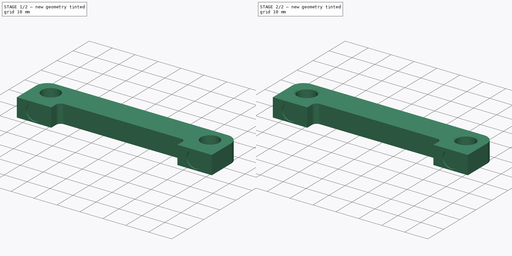
[diagram: build sequence overview — one tinted view per stage of 2, left to right]
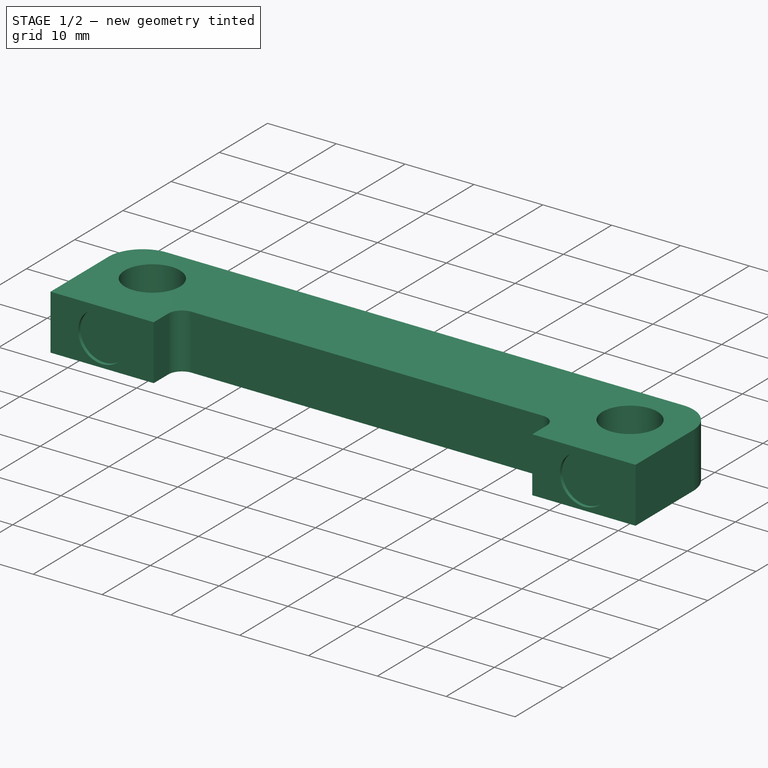
[diagram: stage 1 of 2 — iso view after this stage's code; geometry added in this stage tinted green]
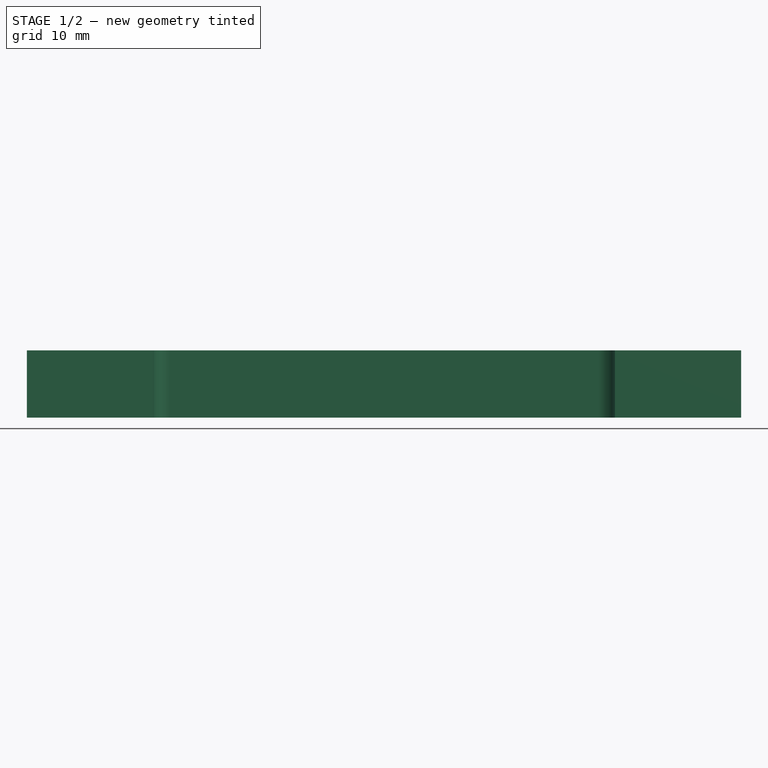
[diagram: stage 1 of 2 — front view after this stage's code; geometry added in this stage tinted green]
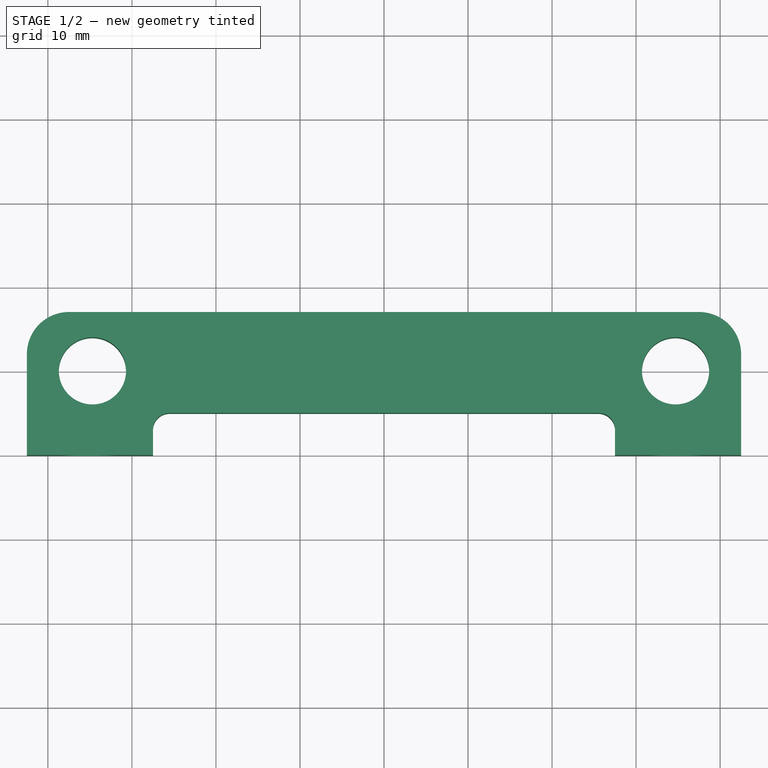
[diagram: stage 1 of 2 — top view after this stage's code; geometry added in this stage tinted green]
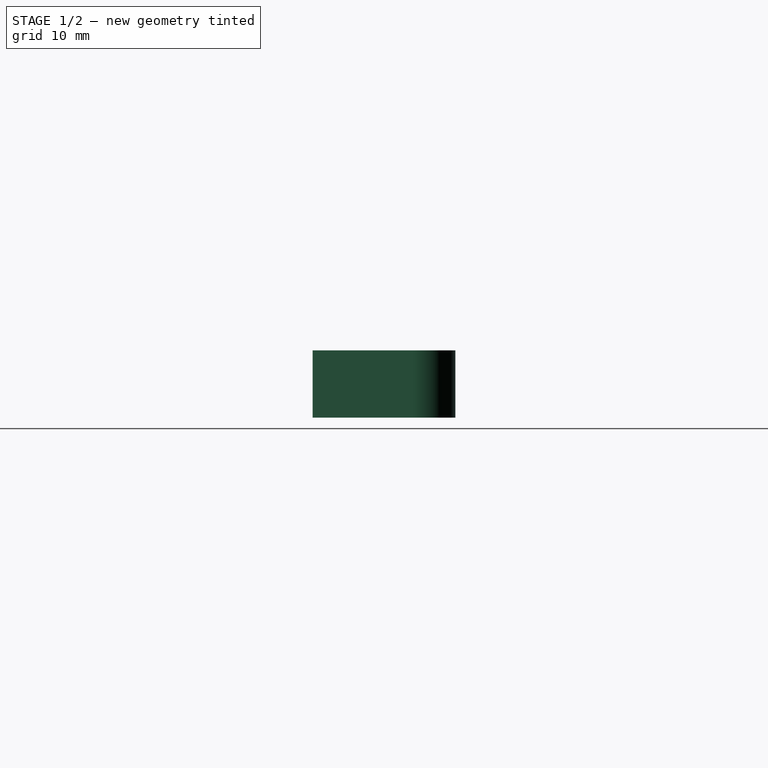
[diagram: stage 1 of 2 — right view after this stage's code; geometry added in this stage tinted green]
FCSTD DOCUMENT  (FreeCAD 0.19R24291 (Git))
Label: smdmagazineend
License: All rights reserved
LicenseURL: http://en.wikipedia.org/wiki/All_rights_reserved
objects: Sketcher::SketchObject×2, PartDesign::Pad×1, PartDesign::Pocket×1, PartDesign::Chamfer×1, PartDesign::Body×1
note: 9 computed .brp shape members not serialized (recipe doc carries the construction recipe); baked Part::Feature solids carry a one-line shape summary decoded from their .brp

FEATURE [Sketcher::SketchObject] Sketch
  FullyConstrained = true
  MapMode = 5
  Support = -> [XY_Plane]
  sketch-geometry (20):
    g0: LineSegment StartX=-42.5 StartY=-10 StartZ=0 EndX=-27.5 EndY=-10 EndZ=0
    g1: LineSegment StartX=42.5 StartY=-10 StartZ=0 EndX=42.5 EndY=2 EndZ=0
    g2: LineSegment StartX=37.5 StartY=7 StartZ=0 EndX=-37.5 EndY=7 EndZ=0
    g3: Circle CenterX=-34.7 CenterY=0 CenterZ=0 NormalX=0 NormalY=0 NormalZ=1 AngleXU=0 Radius=4
    g4: Circle CenterX=34.7 CenterY=0 CenterZ=0 NormalX=0 NormalY=0 NormalZ=1 AngleXU=0 Radius=4
    g5: LineSegment StartX=-42.5 StartY=2 StartZ=0 EndX=-42.5 EndY=-10 EndZ=0
    g6: LineSegment StartX=0 StartY=0 StartZ=0 EndX=-42.5 EndY=7 EndZ=0
    g7: LineSegment StartX=0 StartY=0 StartZ=0 EndX=42.5 EndY=7 EndZ=0
    g8: ArcOfCircle CenterX=-37.5 CenterY=2 CenterZ=0 NormalX=0 NormalY=0 NormalZ=1 AngleXU=0 Radius=5 StartAngle=1.5708 EndAngle=3.14159
    g9: GeomPoint X=-42.5 Y=7 Z=0
    g10: ArcOfCircle CenterX=37.5 CenterY=2 CenterZ=0 NormalX=0 NormalY=0 NormalZ=1 AngleXU=0 Radius=5 StartAngle=0 EndAngle=1.5708
    g11: GeomPoint X=42.5 Y=7 Z=0
    g12: LineSegment StartX=-27.5 StartY=-10 StartZ=0 EndX=-27.5 EndY=-7 EndZ=0
    g13: LineSegment StartX=-25.5 StartY=-5 StartZ=0 EndX=25.5 EndY=-5 EndZ=0
    g14: LineSegment StartX=27.5 StartY=-7 StartZ=0 EndX=27.5 EndY=-10 EndZ=0
    g15: LineSegment StartX=27.5 StartY=-10 StartZ=0 EndX=42.5 EndY=-10 EndZ=0
    g16: ArcOfCircle CenterX=-25.5 CenterY=-7 CenterZ=0 NormalX=0 NormalY=0 NormalZ=1 AngleXU=0 Radius=2 StartAngle=1.5708 EndAngle=3.14159
    g17: GeomPoint X=-27.5 Y=-5 Z=0
    g18: ArcOfCircle CenterX=25.5 CenterY=-7 CenterZ=0 NormalX=0 NormalY=0 NormalZ=1 AngleXU=0 Radius=2 StartAngle=0 EndAngle=1.5708
    g19: GeomPoint X=27.5 Y=-5 Z=0
  constraints (48):
    c: Coincident(g15,g1)
    c: Horizontal(g0)
    c: Horizontal(g2)
    c: Vertical(g1)
    c: Horizontal(g3,g4)
    c: DistanceX(g3,g4) = 69.4
    c: Equal(g4,g3)
    c: Diameter(g4) = 8
    c: DistanceY(g1,g11) = 17
    c: DistanceX(g9,g11) = 85
    c: Symmetric(g4,g3,g-1)
    c: Coincident(g5,g0)
    c: Vertical(g5)
    c: Coincident(g6,g-1)
    c: Coincident(g6,g9)
    c: Coincident(g7,g-1)
    c: Coincident(g7,g11)
    c: Equal(g7,g6)
    c: DistanceY(g15,g-1) = 10
    c: PointOnObject(g9,g5)
    c: PointOnObject(g9,g2)
    c: Tangent(g5,g8) = -1.5708
    c: Tangent(g2,g8) = -1.5708
    c: PointOnObject(g11,g2)
    c: PointOnObject(g11,g1)
    c: Tangent(g2,g10) = -1.5708
    c: Tangent(g1,g10) = -1.5708
    c: Equal(g10,g8)
    c: Radius(g10) = 5
    c: Vertical(g12)
    c: Horizontal(g13)
    c: Vertical(g14)
    c: Coincident(g0,g12)
    c: Coincident(g15,g14)
    c: Tangent(g0,g15)
    c: Equal(g15,g0)
    c: PointOnObject(g17,g12)
    c: PointOnObject(g17,g13)
    c: Tangent(g12,g16) = 1.5708
    c: Tangent(g13,g16) = 1.5708
    c: PointOnObject(g19,g13)
    c: PointOnObject(g19,g14)
    c: Tangent(g13,g18) = 1.5708
    c: Tangent(g14,g18) = 1.5708
    c: Equal(g16,g18)
    c: Radius(g16) = 2
    c: DistanceY(g14,g13) = 5
    c: DistanceX(g0,g14) = 55
FEATURE [PartDesign::Pad] Pad
  Direction = (1,1,1)
  Length = 8
  Length2 = 100
  Profile = -> Sketch
  Type = 0
FEATURE [Sketcher::SketchObject] Sketch001
  FullyConstrained = true
  MapMode = 5
  Placement = pos=(-1.2e-15,-10,0) rot=(1,0,0;1.5708rad)
  Support = -> [Pad]
  sketch-geometry (4):
    g0: Circle CenterX=-35 CenterY=4 CenterZ=0 NormalX=0 NormalY=0 NormalZ=1 AngleXU=0 Radius=3.5
    g1: Circle CenterX=35 CenterY=4 CenterZ=0 NormalX=0 NormalY=0 NormalZ=1 AngleXU=0 Radius=3.5
    g2: LineSegment StartX=-35 StartY=4 StartZ=0 EndX=0 EndY=4e-16 EndZ=0
    g3: LineSegment StartX=0 StartY=0 StartZ=0 EndX=35 EndY=4 EndZ=0
  constraints (10):
    c: Horizontal(g0,g1)
    c: Coincident(g2,g0)
    c: Coincident(g2,g-1)
    c: Coincident(g3,g-1)
    c: Coincident(g3,g1)
    c: Equal(g3,g2)
    c: DistanceX(g0,g1) = 70
    c: DistanceY(g-1,g1) = 4
    c: Diameter(g1) = 7
    c: Equal(g1,g0)
FEATURE [PartDesign::Pocket] Pocket
  BaseFeature = -> Pad
  Length = 0.5
  Length2 = 100
  Profile = -> Sketch001
  Type = 0
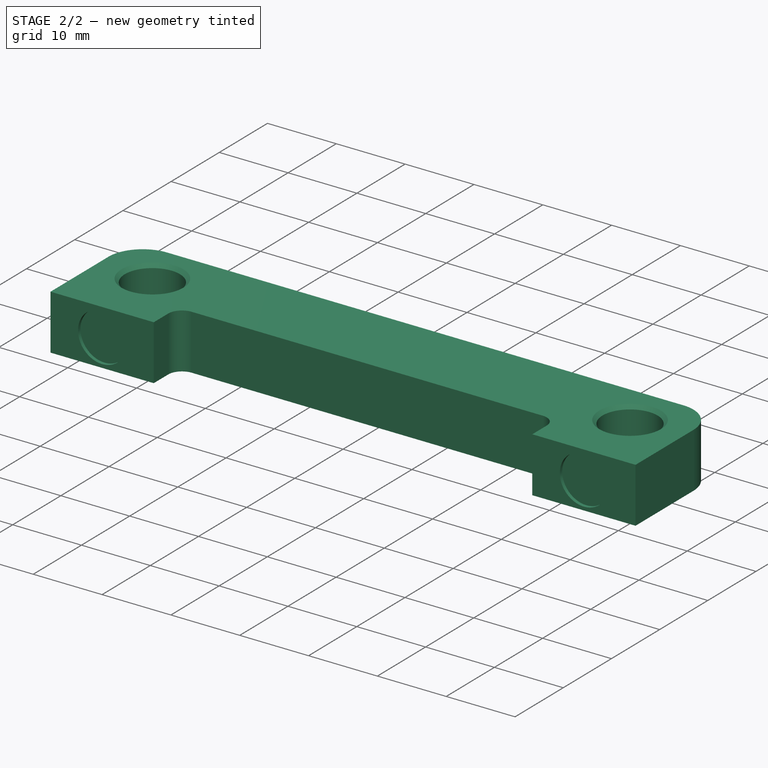
[diagram: stage 2 of 2 — iso view after this stage's code; geometry added in this stage tinted green]
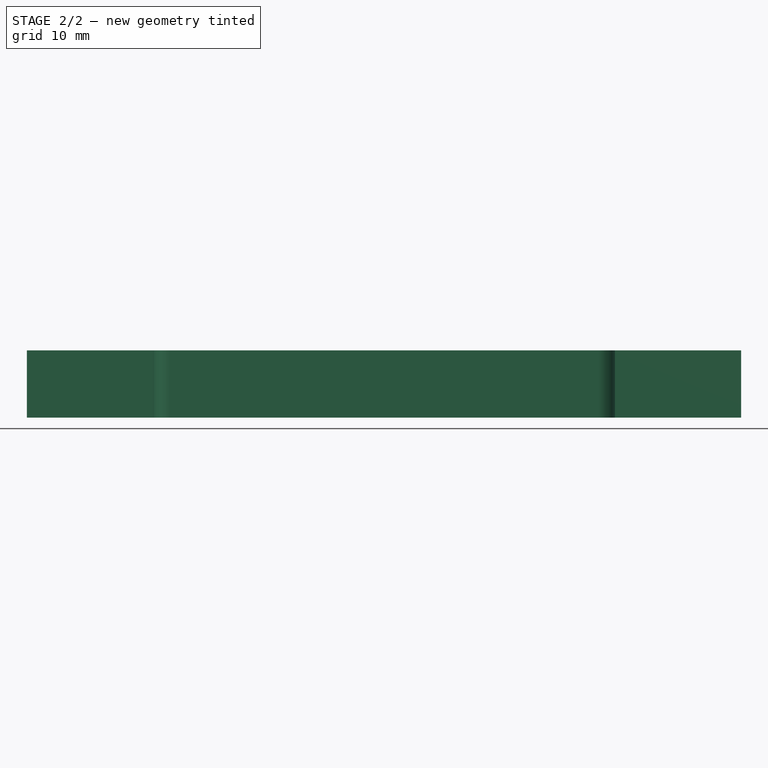
[diagram: stage 2 of 2 — front view after this stage's code; geometry added in this stage tinted green]
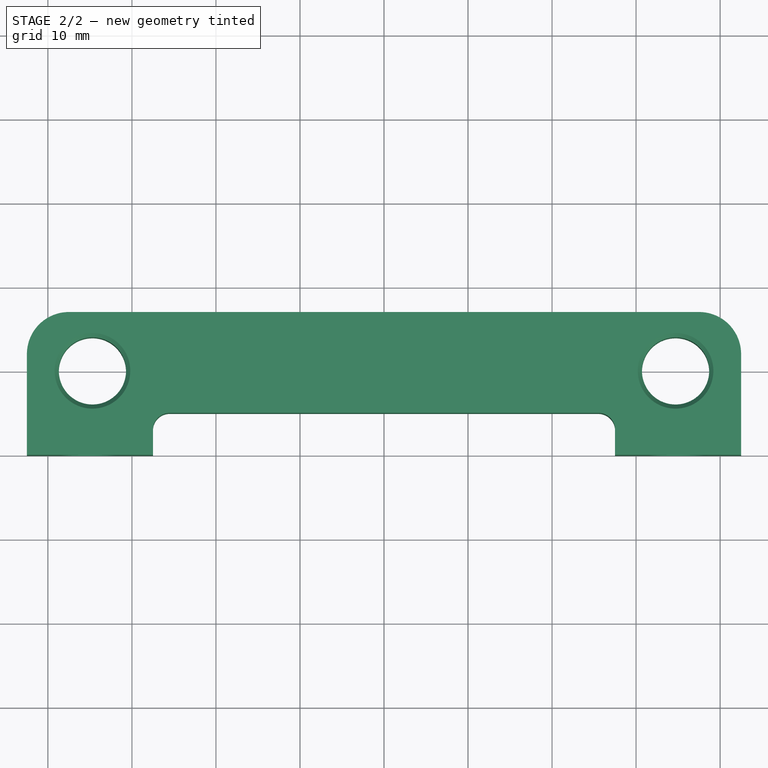
[diagram: stage 2 of 2 — top view after this stage's code; geometry added in this stage tinted green]
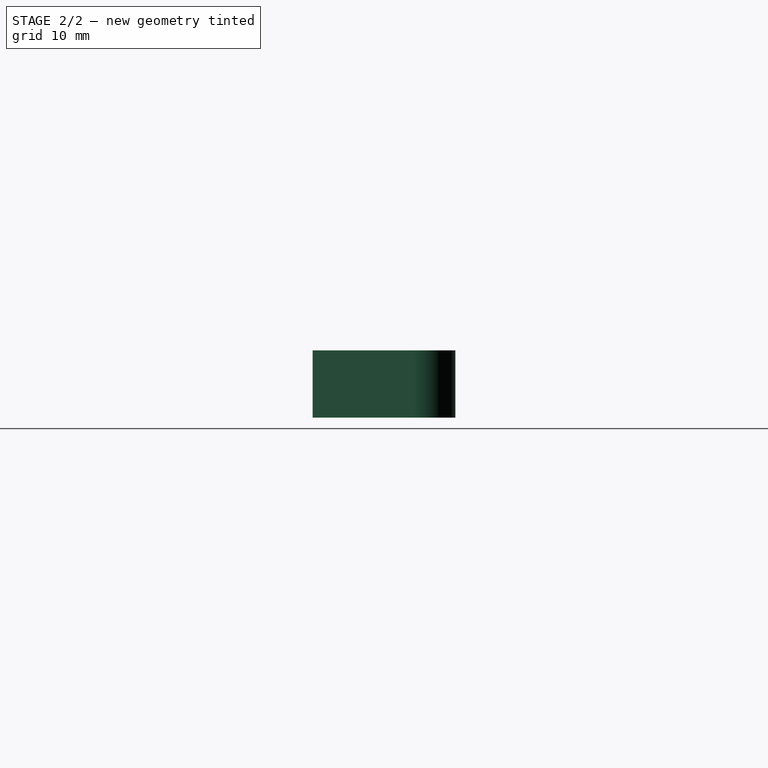
[diagram: stage 2 of 2 — right view after this stage's code; geometry added in this stage tinted green]
FEATURE [PartDesign::Chamfer] Chamfer
  Angle = 45
  Base = -> Pocket [Edge32,Edge33]
  BaseFeature = -> Pocket
  ChamferType = 0
  FlipDirection = false
  Size = 0.5
  Size2 = 1
  SupportTransform = false
FEATURE [PartDesign::Body] Body
  Group = -> [Sketch,Pad,Sketch001,Pocket,Chamfer]
  Origin = -> Origin
  Tip = -> Chamfer
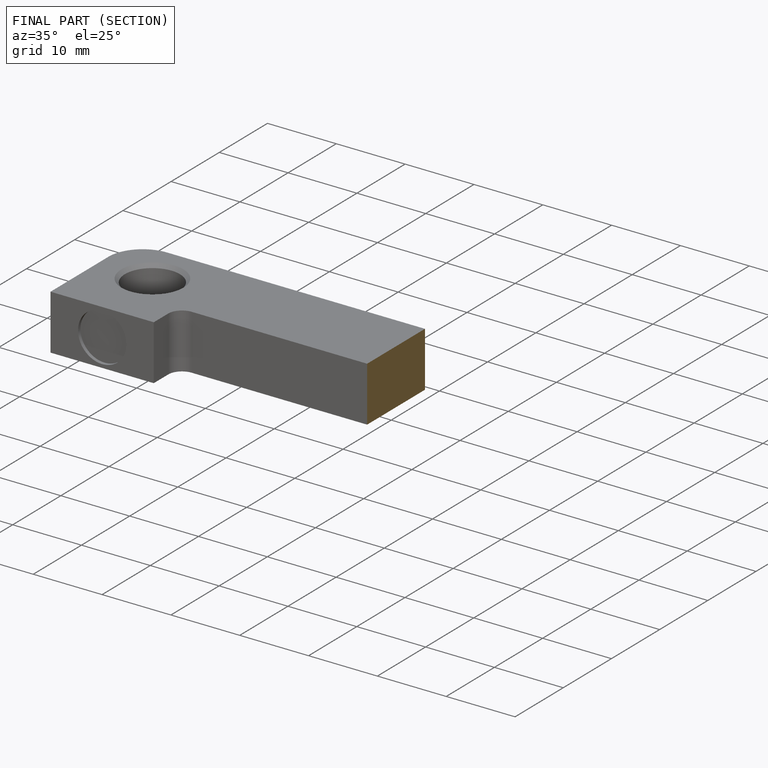
[diagram: finished part — half-section view (interior)]
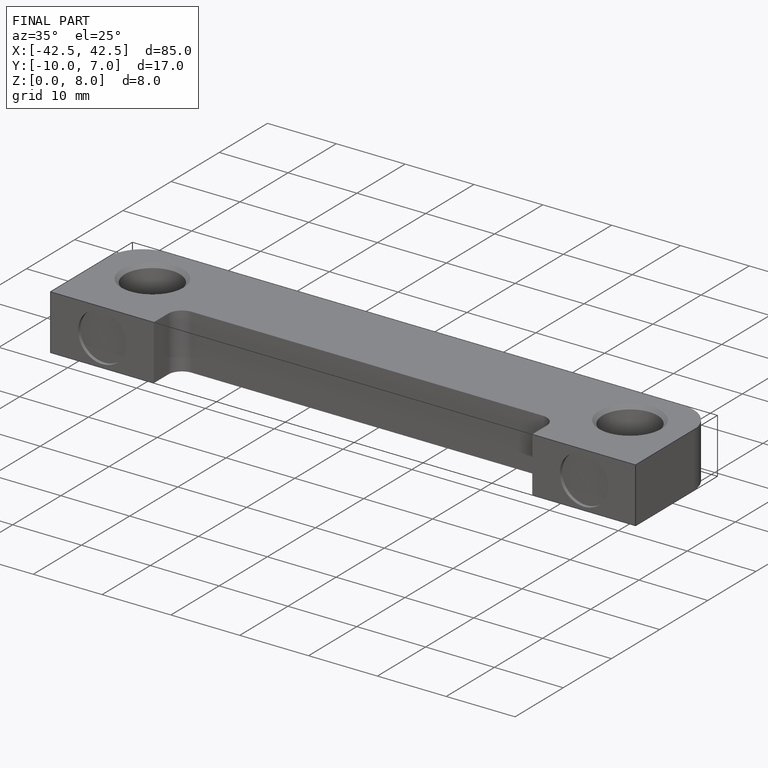
[diagram: finished part — iso view with bounding-box wireframe]
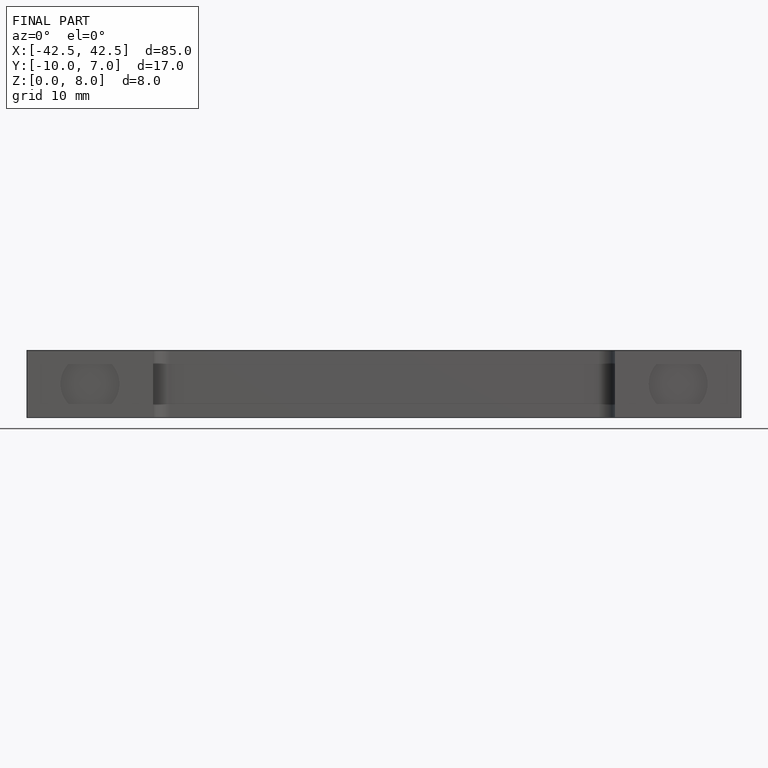
[diagram: finished part — front view with bounding-box wireframe]
